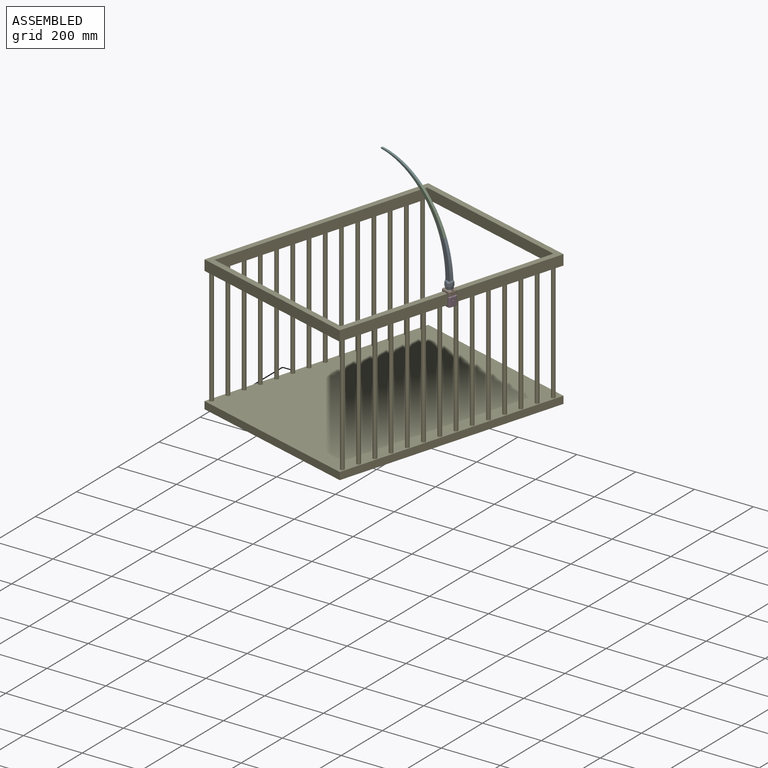
[diagram: assembled view]
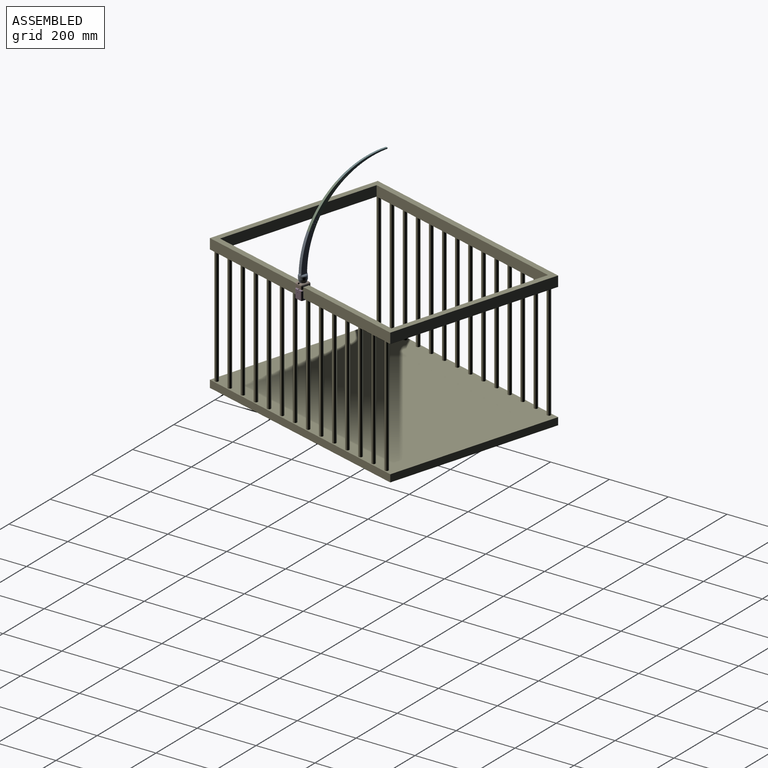
[diagram: assembled view, second angle]
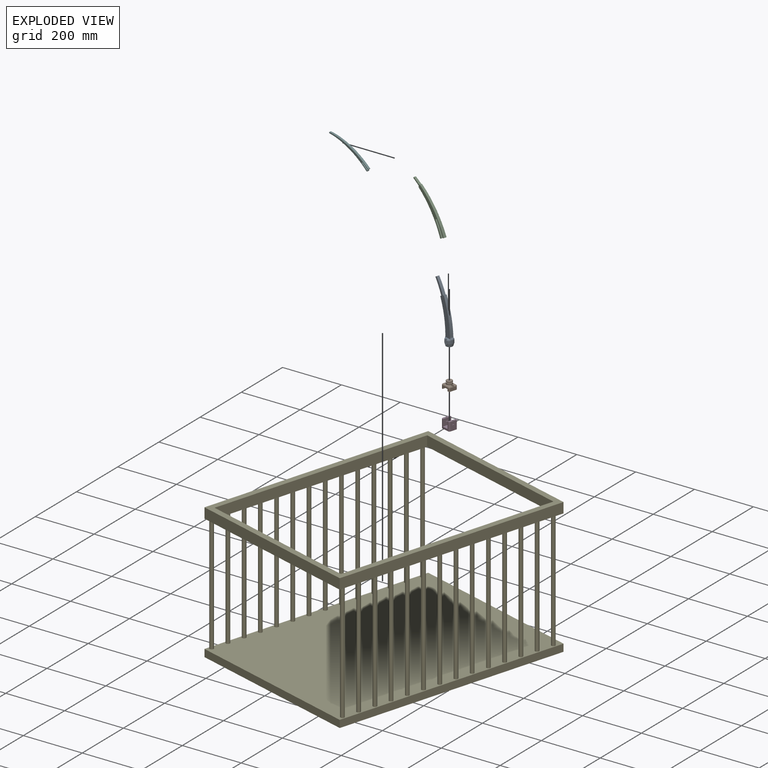
[diagram: exploded view]
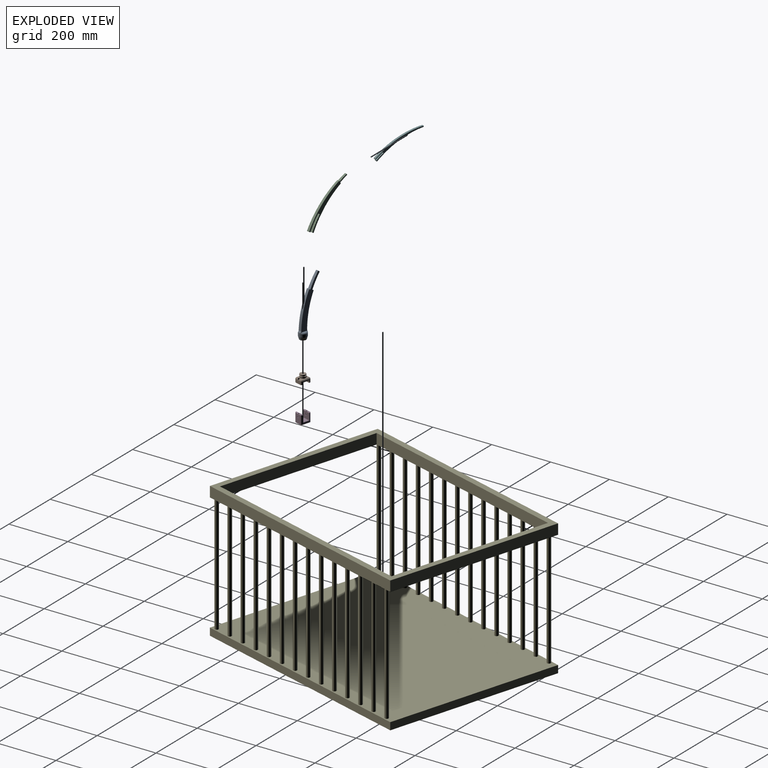
[diagram: exploded view, second angle]
ASSEMBLY  parts=6 mates=5
PART A: 41 faces, bbox 70.4x30.4x196 mm
  f0: cylinder r=10.5mm len=21mm, axis (0,0,-1), area 258.1mm2, adj f7,f8,f40
  f1: cone r=11.03mm half-angle=16.5deg, axis (0,0,1), area 758.1mm2, adj f2,f12,f40
  f2: cylinder r=14mm len=28mm, axis (0,0,-1), area 812.4mm2, adj f1,f3,f20,f21,f22,f23,f24,f25
  f3: torus R=9mm, axis (0,0,1), area 72.1mm2, adj f2,f5,f24,f26,f40
  f4: plane 170.51x66.72mm, normal (0,1,0.01), area 2677.6mm2, adj f19,f24,f26,f27,f28,f29,f30,f31
  f5: plane 9.83x1.46mm, normal (0,0,1), area 9.7mm2, adj f3,f19
  f6: plane 9.83x1.46mm, normal (0,0,1), area 9.7mm2, adj f18,f21
  f7: plane 21x20.97mm, normal (0,0,-1), area 346.3mm2, adj f0,f40
  f8: plane 21x20.97mm, normal (0,0,1), area 169.5mm2, adj f0,f9,f40
  f9: cylinder r=7.5mm len=15mm, axis (0,0,-1), area 94.2mm2, adj f8,f10
  f10: plane 20.6x20.6mm, normal (0,0,-1), area 156.6mm2, adj f9,f11
  f11: cylinder r=10.3mm len=20.6mm, axis (0,0,-1), area 291.2mm2, adj f10,f12
  f12: plane 22.07x21.92mm, normal (0,0,-1), area 47.7mm2, adj f1,f11,f40
  f13: cylinder r=307.83mm len=120.56mm, axis (0,1,0), area 1270.2mm2, adj f16,f27,f32,f38
  f14: cylinder r=298.34mm len=112.86mm, axis (0,1,0), area 1188.7mm2, adj f17,f31,f34,f36
  f15: plane 170.59x66.72mm, normal (0,-1,0.01), area 2678.9mm2, adj f18,f20,f23,f27,f28,f29,f30,f31
  f16: bspline ~13.13x4.64mm, area 41.8mm2, adj f13,f23,f25,f26,f33,f39
  f17: bspline ~14.01x4.84mm, area 43.8mm2, adj f14,f20,f22,f24,f35,f37
  f18: cylinder r=1.4mm len=17.86mm, axis (-1,0,0), area 30.3mm2, adj f6,f15,f20,f23
  f19: cylinder r=1.4mm len=17.86mm, axis (-1,0,0), area 30.3mm2, adj f4,f5,f24,f26
  f20: bspline ~10.73x9.83mm, area 56.4mm2, adj f2,f15,f17,f18,f21,f22,f37
  f21: torus R=9mm, axis (0,0,1), area 110.6mm2, adj f2,f6,f20,f23
  f22: bspline ~15.55x4.05mm, area 41mm2, adj f2,f17,f20,f24
  f23: bspline ~10.73x9.83mm, area 55.8mm2, adj f2,f15,f16,f18,f21,f25,f39
  f24: bspline ~10.73x9.83mm, area 56.4mm2, adj f2,f3,f4,f17,f19,f22,f35
  f25: bspline ~15.83x4.16mm, area 42.9mm2, adj f2,f16,f23,f26
  f26: bspline ~10.73x9.83mm, area 55.8mm2, adj f2,f3,f4,f16,f19,f25,f33
  f27: plane 10.17x4.1mm, normal (0.42,0.01,0.91), area 45.4mm2, adj f4,f13,f15,f28,f32,f38
  f28: cylinder r=305.69mm len=49.05mm, axis (0,-1,0.01), area 550.7mm2, adj f4,f15,f27,f29
  f29: plane 9.36x5.47mm, normal (0.53,0.01,0.85), area 60mm2, adj f4,f15,f28,f30
  f30: cylinder r=296.97mm len=48.93mm, axis (0,-1,0.01), area 545.9mm2, adj f4,f15,f29,f31
  f31: plane 10.27x5.08mm, normal (0.42,0.01,0.91), area 56.9mm2, adj f4,f14,f15,f30,f34,f36
  f32: bspline ~120.5x29.34mm, area 97.8mm2, adj f4,f13,f27,f33
  f33: bspline ~4.31x1.4mm, area 1.7mm2, adj f4,f16,f26,f32
  f34: bspline ~113.01x24.54mm, area 91.3mm2, adj f4,f14,f31,f35
  f35: bspline ~4.36x1.26mm, area 1.8mm2, adj f4,f17,f24,f34
  f36: bspline ~113.08x24.57mm, area 91.4mm2, adj f14,f15,f31,f37
  f37: bspline ~4.36x1.26mm, area 1.8mm2, adj f15,f17,f20,f36
  f38: bspline ~120.57x29.37mm, area 97.9mm2, adj f13,f15,f27,f39
  f39: bspline ~4.31x1.4mm, area 1.7mm2, adj f15,f16,f23,f38
  f40: cylinder r=3.6mm len=23.8mm, axis (0,0,-1), area 198.6mm2, adj f0,f1,f2,f3,f7,f8,f12
PART B: 37 faces, bbox 35x30x26 mm
  f0: cylinder r=5mm len=10mm, axis (0,1,0), area 59.5mm2, adj f5,f9,f26,f34
  f1: cylinder r=5mm len=10mm, axis (0,-1,0), area 59.5mm2, adj f4,f10,f30,f36
  f2: cylinder r=2.15mm len=10mm, axis (0,0,-1), area 135.1mm2, adj f6,f35
  f3: cylinder r=2.15mm len=10mm, axis (0,0,-1), area 135.1mm2, adj f11,f33
  f4: plane 20x12.5mm, normal (0,0,1), area 83.8mm2, adj f1,f14,f19,f20,f21,f36
  f5: plane 20x12.5mm, normal (0,0,1), area 83.8mm2, adj f0,f14,f18,f19,f20,f34
  f6: plane 30x7mm, normal (0,0,-1), area 184.7mm2, adj f2,f7,f8,f10,f23,f29,f31
  f7: plane 25x10mm, normal (0,-1,0), area 103mm2, adj f6,f11,f20,f22,f23,f24,f27,f29
  f8: plane 25x10mm, normal (0,1,0), area 103mm2, adj f6,f11,f19,f22,f23,f24,f25,f31
  f9: plane 20x10mm, normal (-1,0,0), area 200mm2, adj f0,f11,f18,f25,f27
  f10: plane 20x10mm, normal (1,0,0), area 200mm2, adj f1,f6,f21,f29,f31
  f11: plane 30x7mm, normal (0,0,-1), area 184.7mm2, adj f3,f7,f8,f9,f24,f25,f27
  f12: cylinder r=10mm len=20mm, axis (0,0,-1), area 188.5mm2, adj f13,f17
  f13: plane 20x20mm, normal (0,0,1), area 314.2mm2, adj f12
  f14: cylinder r=10mm len=20mm, axis (0,0,-1), area 314.2mm2, adj f4,f5,f15
  f15: plane 20x20mm, normal (0,0,1), area 160.2mm2, adj f14,f16
  f16: cylinder r=7mm len=14mm, axis (0,0,-1), area 131.9mm2, adj f15,f17
  f17: plane 20x20mm, normal (0,0,-1), area 160.2mm2, adj f12,f16
  f18: cylinder r=5mm len=10mm, axis (0,1,0), area 59.5mm2, adj f5,f9,f28,f34
  f19: cylinder r=5mm len=25mm, axis (1,0,0), area 196.3mm2, adj f4,f5,f8,f26,f32
  f20: cylinder r=5mm len=25mm, axis (-1,0,0), area 196.3mm2, adj f4,f5,f7,f28,f30
  f21: cylinder r=5mm len=10mm, axis (0,-1,0), area 59.5mm2, adj f4,f10,f32,f36
  f22: plane 30x21mm, normal (0,0,-1), area 630mm2, adj f7,f8,f23,f24
  f23: plane 30x7mm, normal (-1,0,0), area 210mm2, adj f6,f7,f8,f22
  f24: plane 30x7mm, normal (1,0,0), area 210mm2, adj f7,f8,f11,f22
  f25: cylinder r=5mm len=10mm, axis (0,0,1), area 78.5mm2, adj f8,f9,f11,f26
  f26: sphere r=5mm, area 39.3mm2, adj f0,f19,f25
  f27: cylinder r=5mm len=10mm, axis (0,0,-1), area 78.5mm2, adj f7,f9,f11,f28
  f28: sphere r=5mm, area 39.3mm2, adj f18,f20,f27
  f29: cylinder r=5mm len=10mm, axis (0,0,1), area 78.5mm2, adj f6,f7,f10,f30
  f30: sphere r=5mm, area 39.3mm2, adj f1,f20,f29
  f31: cylinder r=5mm len=10mm, axis (0,0,-1), area 78.5mm2, adj f6,f8,f10,f32
  f32: sphere r=5mm, area 39.3mm2, adj f19,f21,f31
  f33: plane 7x7mm, normal (0,0,1), area 24mm2, adj f3,f34
  f34: cylinder r=3.5mm len=7mm, axis (0,0,1), area 85.7mm2, adj f0,f5,f18,f33
  f35: plane 7x7mm, normal (0,0,1), area 24mm2, adj f2,f36
  f36: cylinder r=3.5mm len=7mm, axis (0,0,1), area 85.7mm2, adj f1,f4,f21,f35
PART C: 18 faces, bbox 137.2x10.7x146.2 mm
  f0: plane 7.99x2.52mm, normal (0.83,0,0.56), area 23.4mm2, adj f1,f5,f7,f8,f14,f17
  f1: cylinder r=305.69mm len=25.62mm, axis (0,-1,0.01), area 235.7mm2, adj f0,f2,f5,f8
  f2: plane 7.76x3.2mm, normal (0.83,0,0.56), area 29.1mm2, adj f1,f3,f5,f8
  f3: cylinder r=296.97mm len=25.34mm, axis (0,-1,0.01), area 237.3mm2, adj f2,f4,f5,f8
  f4: plane 8.11x3.64mm, normal (0.83,0,0.56), area 34.6mm2, adj f3,f5,f6,f8,f15,f16
  f5: plane 145.85x136.7mm, normal (0,-1,0.01), area 1948.7mm2, adj f0,f1,f2,f3,f4,f9,f10,f11
  f6: cylinder r=298.34mm len=123.29mm, axis (0,1,0), area 1302.9mm2, adj f4,f12,f15,f16
  f7: cylinder r=307.83mm len=125.34mm, axis (0,1,0), area 1344.4mm2, adj f0,f13,f14,f17
  f8: plane 145.88x136.75mm, normal (0,1,0.01), area 1949.6mm2, adj f0,f1,f2,f3,f4,f9,f10,f11
  f9: cylinder r=305.89mm len=49.05mm, axis (0,-1,0.01), area 550.7mm2, adj f5,f8,f10,f13
  f10: plane 9.36x5.81mm, normal (-0.53,-0.01,-0.85), area 63.7mm2, adj f5,f8,f9,f11
  f11: cylinder r=296.77mm len=48.89mm, axis (0,-1,0.01), area 545.6mm2, adj f5,f8,f10,f12
  f12: plane 10.27x4.9mm, normal (-0.42,-0.01,-0.91), area 54.9mm2, adj f5,f6,f8,f11,f15,f16
  f13: plane 10.17x3.92mm, normal (-0.42,-0.01,-0.91), area 43.4mm2, adj f5,f7,f8,f9,f14,f17
  f14: bspline ~125.49x108.1mm, area 130.9mm2, adj f0,f5,f7,f13
  f15: bspline ~123.65x98.62mm, area 125.7mm2, adj f4,f5,f6,f12
  f16: bspline ~123.69x98.62mm, area 125.8mm2, adj f4,f6,f8,f12
  f17: bspline ~125.54x108.1mm, area 130.9mm2, adj f0,f7,f8,f13
PART D: 36 faces, bbox 35.8x30.8x30 mm
  f0: plane 30x23mm, normal (1,0,0), area 671.7mm2, adj f6,f7,f9,f10,f24,f25,f26,f27
  f1: plane 28.5x20mm, normal (-1,0,0), area 551.7mm2, adj f7,f13,f15,f17,f24,f25,f26,f27
  f2: plane 28.5x20mm, normal (1,0,0), area 551.7mm2, adj f11,f12,f14,f22,f28,f29,f30,f31
  f3: plane 30x23mm, normal (-1,0,0), area 671.7mm2, adj f6,f9,f10,f11,f28,f29,f30,f31
  f4: cylinder r=2.15mm len=9.25mm, axis (0,0,-1), area 125mm2, adj f11,f28
  f5: cylinder r=2.15mm len=9.25mm, axis (0,0,-1), area 125mm2, adj f7,f25
  f6: plane 28.5x25mm, normal (0,1,0), area 229.5mm2, adj f0,f3,f7,f10,f11,f12,f13,f21
  f7: plane 30x7mm, normal (0,0,1), area 184.7mm2, adj f0,f1,f5,f6,f9,f13,f15
  f8: plane 32x27mm, normal (0,0,-1), area 853.5mm2, adj f16,f17,f18,f19,f20,f21,f22,f23
  f9: plane 28.5x25mm, normal (0,-1,0), area 229.5mm2, adj f0,f3,f7,f10,f11,f14,f15,f18
  f10: plane 30x21mm, normal (0,0,1), area 630mm2, adj f0,f3,f6,f9
  f11: plane 30x7mm, normal (0,0,1), area 184.7mm2, adj f2,f3,f4,f6,f9,f12,f14
  f12: cylinder r=5mm len=28.5mm, axis (0,0,1), area 223.8mm2, adj f2,f6,f11,f23
  f13: cylinder r=5mm len=28.5mm, axis (0,0,-1), area 223.8mm2, adj f1,f6,f7,f19
  f14: cylinder r=5mm len=28.5mm, axis (0,0,1), area 223.8mm2, adj f2,f9,f11,f20
  f15: cylinder r=5mm len=28.5mm, axis (0,0,-1), area 223.8mm2, adj f1,f7,f9,f16
  f16: torus R=3.5mm, axis (0,0,1), area 16.5mm2, adj f8,f15,f17,f18
  f17: cylinder r=1.5mm len=20mm, axis (0,-1,0), area 47.1mm2, adj f1,f8,f16,f19
  f18: cylinder r=1.5mm len=25mm, axis (1,0,0), area 58.9mm2, adj f8,f9,f16,f20
  f19: torus R=3.5mm, axis (0,0,1), area 16.5mm2, adj f8,f13,f17,f21
  f20: torus R=3.5mm, axis (0,0,1), area 16.5mm2, adj f8,f14,f18,f22
  f21: cylinder r=1.5mm len=25mm, axis (1,0,0), area 58.9mm2, adj f6,f8,f19,f23
  f22: cylinder r=1.5mm len=20mm, axis (0,-1,0), area 47.1mm2, adj f2,f8,f20,f23
  f23: torus R=3.5mm, axis (0,0,1), area 16.5mm2, adj f8,f12,f21,f22
  f24: plane 7.3x7mm, normal (0,0,1), area 36.6mm2, adj f0,f1,f26,f27,f33
  f25: plane 7.3x7mm, normal (0,0,-1), area 36.6mm2, adj f0,f1,f5,f26,f27
  f26: plane 7x2.5mm, normal (0,1,0), area 17.5mm2, adj f0,f1,f24,f25
  f27: plane 7x2.5mm, normal (0,-1,0), area 17.5mm2, adj f0,f1,f24,f25
  f28: plane 7.3x7mm, normal (0,0,-1), area 36.6mm2, adj f2,f3,f4,f30,f31
  f29: plane 7.3x7mm, normal (0,0,1), area 36.6mm2, adj f2,f3,f30,f31,f35
  f30: plane 7x2.5mm, normal (0,-1,0), area 17.5mm2, adj f2,f3,f28,f29
  f31: plane 7x2.5mm, normal (0,1,0), area 17.5mm2, adj f2,f3,f28,f29
  f32: plane 4.3x4.3mm, normal (0,0,1), area 14.5mm2, adj f33
  f33: cylinder r=2.15mm len=9.25mm, axis (0,0,-1), area 125mm2, adj f24,f32
  f34: plane 4.3x4.3mm, normal (0,0,1), area 14.5mm2, adj f35
  f35: cylinder r=2.15mm len=9.25mm, axis (0,0,-1), area 125mm2, adj f29,f34
PART E: 44 faces, bbox 600x800x460 mm
  f0: plane 600x35mm, normal (0,1,0), area 21000mm2, adj f1,f7,f8,f9
  f1: plane 800x35mm, normal (-1,0,0), area 28000mm2, adj f0,f2,f8,f9
  f2: plane 600x35mm, normal (0,-1,0), area 21000mm2, adj f1,f7,f8,f9
  f3: plane 760x35mm, normal (1,0,0), area 26600mm2, adj f4,f6,f8,f9
  f4: plane 560x35mm, normal (0,-1,0), area 19600mm2, adj f3,f5,f8,f9
  f5: plane 760x35mm, normal (-1,0,0), area 26600mm2, adj f4,f6,f8,f9
  f6: plane 560x35mm, normal (0,1,0), area 19600mm2, adj f3,f5,f8,f9
  f7: plane 800x35mm, normal (1,0,0), area 28000mm2, adj f0,f2,f8,f9
  f8: plane 800x600mm, normal (0,0,-1), area 50623.3mm2, adj f0,f1,f2,f3,f4,f5,f6,f7
  f9: plane 800x600mm, normal (0,0,1), area 54400mm2, adj f0,f1,f2,f3,f4,f5,f6,f7
  f10: cylinder r=6.55mm len=400mm, axis (0,0,1), area 16468mm2, adj f8,f38
  f11: cylinder r=6.55mm len=400mm, axis (0,0,1), area 16468mm2, adj f8,f38
  f12: cylinder r=6.55mm len=400mm, axis (0,0,1), area 16468mm2, adj f8,f38
  f13: cylinder r=6.55mm len=400mm, axis (0,0,1), area 16468mm2, adj f8,f38
  f14: cylinder r=6.55mm len=400mm, axis (0,0,1), area 16468mm2, adj f8,f38
  f15: cylinder r=6.55mm len=400mm, axis (0,0,1), area 16468mm2, adj f8,f38
  f16: cylinder r=6.55mm len=400mm, axis (0,0,1), area 16468mm2, adj f8,f38
  f17: cylinder r=6.55mm len=400mm, axis (0,0,1), area 16468mm2, adj f8,f38
  f18: cylinder r=6.55mm len=400mm, axis (0,0,1), area 16468mm2, adj f8,f38
  f19: cylinder r=6.55mm len=400mm, axis (0,0,1), area 16468mm2, adj f8,f38
  f20: cylinder r=6.55mm len=400mm, axis (0,0,1), area 16468mm2, adj f8,f38
  f21: cylinder r=6.55mm len=400mm, axis (0,0,1), area 16468mm2, adj f8,f38
  f22: cylinder r=6.55mm len=400mm, axis (0,0,1), area 16468mm2, adj f8,f38
  f23: cylinder r=6.55mm len=400mm, axis (0,0,1), area 16468mm2, adj f8,f38
  f24: cylinder r=6.55mm len=400mm, axis (0,0,1), area 16468mm2, adj f8,f38
  f25: cylinder r=6.55mm len=400mm, axis (0,0,1), area 16468mm2, adj f8,f38
  f26: cylinder r=6.55mm len=400mm, axis (0,0,1), area 16468mm2, adj f8,f38
  f27: cylinder r=6.55mm len=400mm, axis (0,0,1), area 16468mm2, adj f8,f38
  f28: cylinder r=6.55mm len=400mm, axis (0,0,1), area 16468mm2, adj f8,f38
  f29: cylinder r=6.55mm len=400mm, axis (0,0,1), area 16468mm2, adj f8,f38
  f30: cylinder r=6.55mm len=400mm, axis (0,0,1), area 16468mm2, adj f8,f38
  f31: cylinder r=6.55mm len=400mm, axis (0,0,1), area 16468mm2, adj f8,f38
  f32: cylinder r=6.55mm len=400mm, axis (0,0,1), area 16468mm2, adj f8,f38
  f33: cylinder r=6.55mm len=400mm, axis (0,0,1), area 16468mm2, adj f8,f38
  f34: cylinder r=6.55mm len=400mm, axis (0,0,1), area 16468mm2, adj f8,f38
  f35: cylinder r=6.55mm len=400mm, axis (0,0,1), area 16468mm2, adj f8,f38
  f36: cylinder r=6.55mm len=400mm, axis (0,0,1), area 16468mm2, adj f8,f38
  f37: cylinder r=6.55mm len=400mm, axis (0,0,1), area 16468mm2, adj f8,f38
  f38: plane 800x600mm, normal (0,0,1), area 476223.3mm2, adj f10,f11,f12,f13,f14,f15,f16,f17
  f39: plane 600x25mm, normal (0,1,0), area 15000mm2, adj f38,f40,f42,f43
  f40: plane 800x25mm, normal (1,0,0), area 20000mm2, adj f38,f39,f41,f43
  f41: plane 600x25mm, normal (0,-1,0), area 15000mm2, adj f38,f40,f42,f43
  f42: plane 800x25mm, normal (-1,0,0), area 20000mm2, adj f38,f39,f41,f43
  f43: plane 800x600mm, normal (0,0,-1), area 480000mm2, adj f39,f40,f41,f42
PART F: 38 faces, bbox 203.5x8.2x61.3 mm
  f0: plane 6.09x3.02mm, normal (1,0,0), area 18.3mm2, adj f16,f17,f22,f23
  f1: cylinder r=307.83mm len=6.04mm, axis (0,1,0), area 11.3mm2, adj f21,f22,f29,f30
  f2: plane 172.67x60.34mm, normal (0,1,0.01), area 1080.6mm2, adj f6,f7,f8,f9,f10,f14,f16,f21
  f3: plane 172.63x60.31mm, normal (0,-1,0.01), area 1080.2mm2, adj f6,f7,f8,f9,f10,f18,f23,f30
  f4: cylinder r=298.34mm len=166.56mm, axis (0,1,0), area 1178.4mm2, adj f10,f14,f17,f18
  f5: cylinder r=307.83mm len=168.33mm, axis (0,1,0), area 1158.7mm2, adj f9,f11,f27,f33,f34
  f6: cylinder r=305.89mm len=25.63mm, axis (0,-1,0.01), area 235.5mm2, adj f2,f3,f7,f9
  f7: plane 7.76x3.53mm, normal (-0.83,0,-0.56), area 32.1mm2, adj f2,f3,f6,f8
  f8: cylinder r=296.77mm len=25.35mm, axis (0,-1,0.01), area 237.3mm2, adj f2,f3,f7,f10
  f9: plane 7.99x2.36mm, normal (-0.83,0,-0.56), area 21.7mm2, adj f2,f3,f5,f6,f11,f27,f33
  f10: plane 8.11x3.47mm, normal (-0.83,0,-0.56), area 32.9mm2, adj f2,f3,f4,f8,f14,f18
  f11: plane 3.62x0.04mm, normal (-0.83,0,-0.56), area 0mm2, adj f5,f9,f27
  f12: cylinder r=1.5mm len=6.05mm, axis (0,1,0), area 7.7mm2, adj f13,f28,f34,f37
  f13: cylinder r=1.5mm len=6.05mm, axis (0,1,0), area 5.9mm2, adj f12,f24,f29,f35
  f14: bspline ~166.86x57.72mm, area 141.2mm2, adj f2,f4,f10,f15
  f15: sphere r=0.5mm, area 0.4mm2, adj f14,f16,f17
  f16: cylinder r=0.5mm len=3.02mm, axis (0,0.01,-1), area 2.4mm2, adj f0,f2,f15,f19
  f17: cylinder r=0.5mm len=6.09mm, axis (0,1,0), area 4.7mm2, adj f0,f4,f15,f20
  f18: bspline ~166.83x57.7mm, area 141.2mm2, adj f3,f4,f10,f20
  f19: sphere r=0.5mm, area 0.4mm2, adj f16,f21,f22
  f20: sphere r=0.5mm, area 0.2mm2, adj f17,f18,f23
  f21: bspline ~33.55x1.59mm, area 1.5mm2, adj f1,f2,f19,f25
  f22: cylinder r=0.5mm len=6.04mm, axis (0,1,0), area 4.7mm2, adj f0,f1,f19,f26
  f23: cylinder r=0.5mm len=3.02mm, axis (0,-0.01,-1), area 2.4mm2, adj f0,f3,f20,f26
  f24: bspline ~1.51x1.13mm, area 0.9mm2, adj f2,f13,f25,f28
  f25: sphere r=0.5mm, area 0.2mm2, adj f21,f24,f29
  f26: sphere r=0.5mm, area 0.4mm2, adj f22,f23,f30
  f27: bspline ~183.32x56.02mm, area 139.4mm2, adj f2,f5,f9,f11,f31
  f28: bspline ~1.57x0.95mm, area 1.1mm2, adj f2,f12,f24,f31
  f29: cylinder r=0.5mm len=6.04mm, axis (0,-1,0), area 2.5mm2, adj f1,f13,f25,f32
  f30: bspline ~26.83x1.59mm, area 1.5mm2, adj f1,f3,f26,f32
  f31: sphere r=0.5mm, area 0.2mm2, adj f27,f28,f34
  f32: sphere r=0.5mm, area 0.2mm2, adj f29,f30,f35
  f33: bspline ~176.61x56.02mm, area 139.4mm2, adj f3,f5,f9,f36
  f34: cylinder r=0.5mm len=6.04mm, axis (0,-1,0), area 2.4mm2, adj f5,f12,f31,f36
  f35: bspline ~1.51x1.13mm, area 0.9mm2, adj f3,f13,f32,f37
  f36: sphere r=0.5mm, area 0.2mm2, adj f33,f34,f37
  f37: bspline ~1.99x1.14mm, area 1.1mm2, adj f3,f12,f35,f36
PLACE A rot(axis=(0,0,1),163.9deg) t=(234.16,-125.11,17.11)mm
PLACE B rot(axis=(0,0,-1),16.1deg) t=(208.88,-86.56,17.61)mm
PLACE C rot(axis=(0,0,1),163.9deg) t=(234.27,-125.14,16.95)mm
PLACE D rot(axis=(0,0,-1),16.1deg) t=(208.88,-86.56,17.61)mm
PLACE E rot(axis=(0,0,-1),16.1deg) t=(-36.16,21.8,24.61)mm
PLACE F rot(axis=(0,0,1),163.9deg) t=(234.44,-125.19,16.85)mm
MATE fastened F.f7 <-> C.f2  axis (0.8,-0.23,-0.56) through (73,-62.87,318.86)mm
MATE fastened B.f22 <-> E.f9  axis (0,0,-1) through (211.43,-102.92,24.61)mm
MATE fastened D.f10 <-> E.f8  axis (0,0,1) through (231.6,-108.75,-10.39)mm
MATE revolute A.f0 <-> B.f12  axis (0,0,-1) through (221.52,-105.83,43.61)mm
MATE fastened C.f10 <-> A.f29  axis (0.51,-0.14,-0.85) through (170.08,-90.95,227.23)mm
